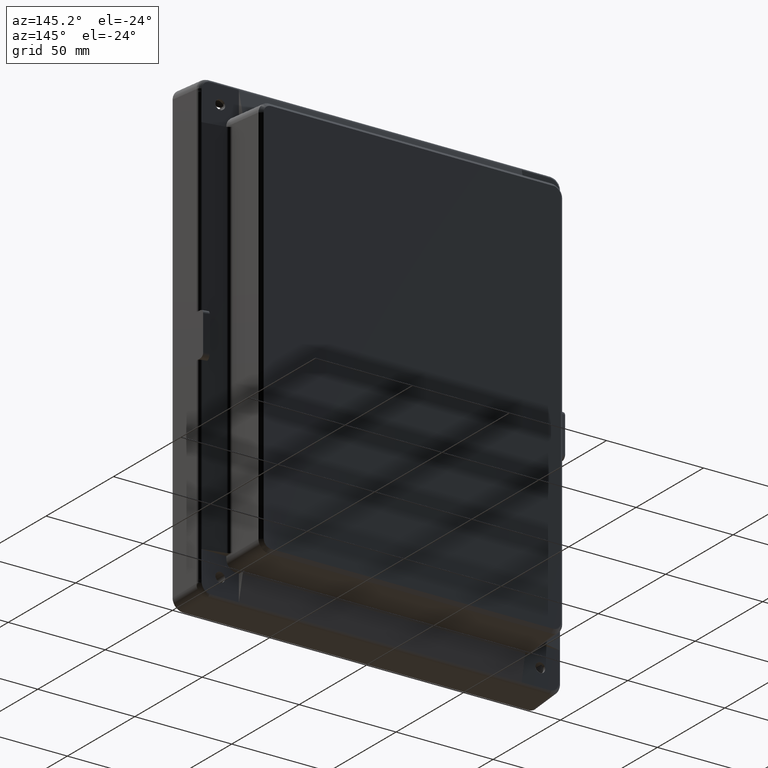
[diagram: clean part render]
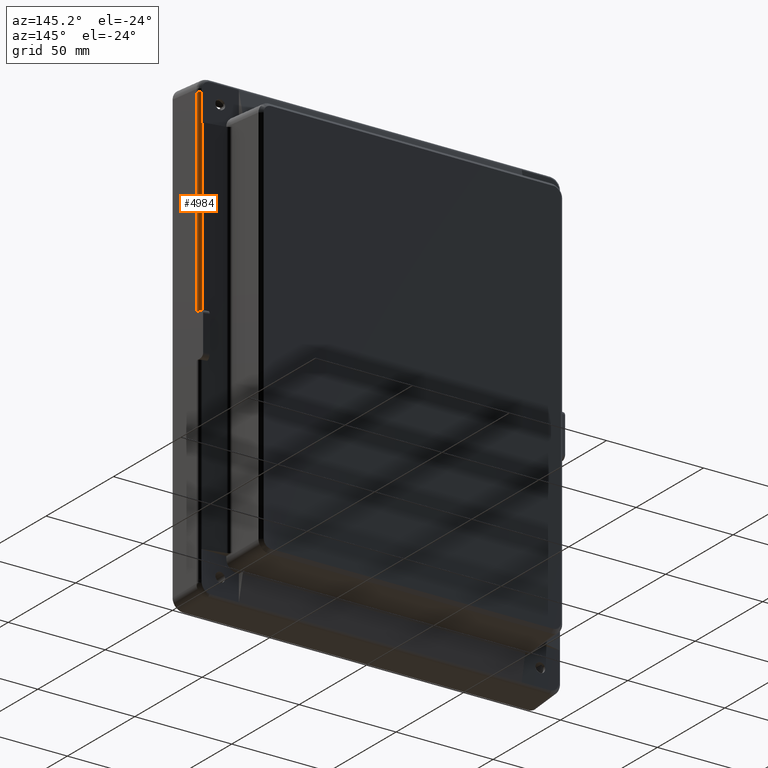
[diagram: same view with one face highlighted and labeled with its STEP entity id]
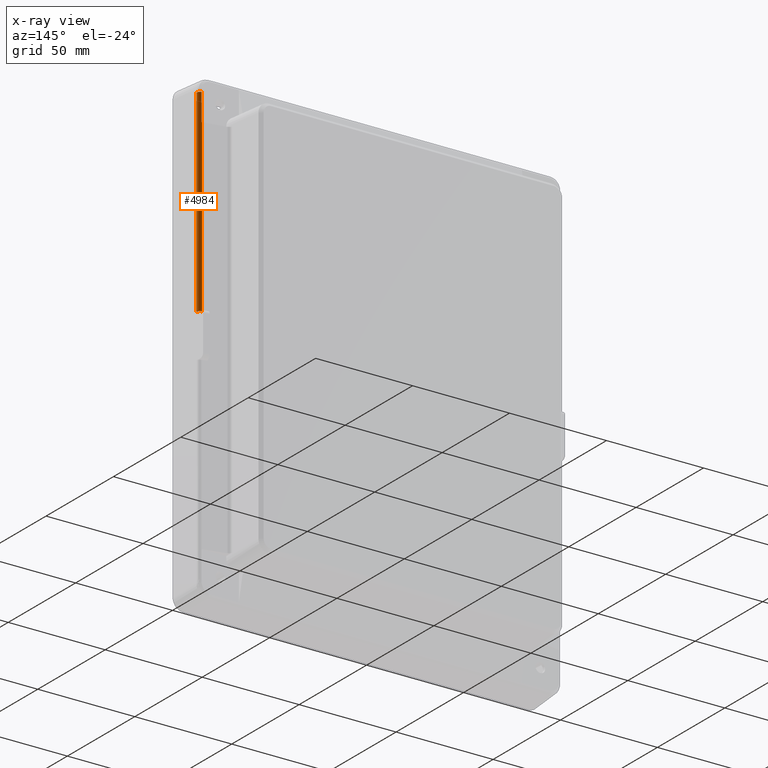
[diagram: x-ray of the same camera — body ghosted, the highlighted face saturated]
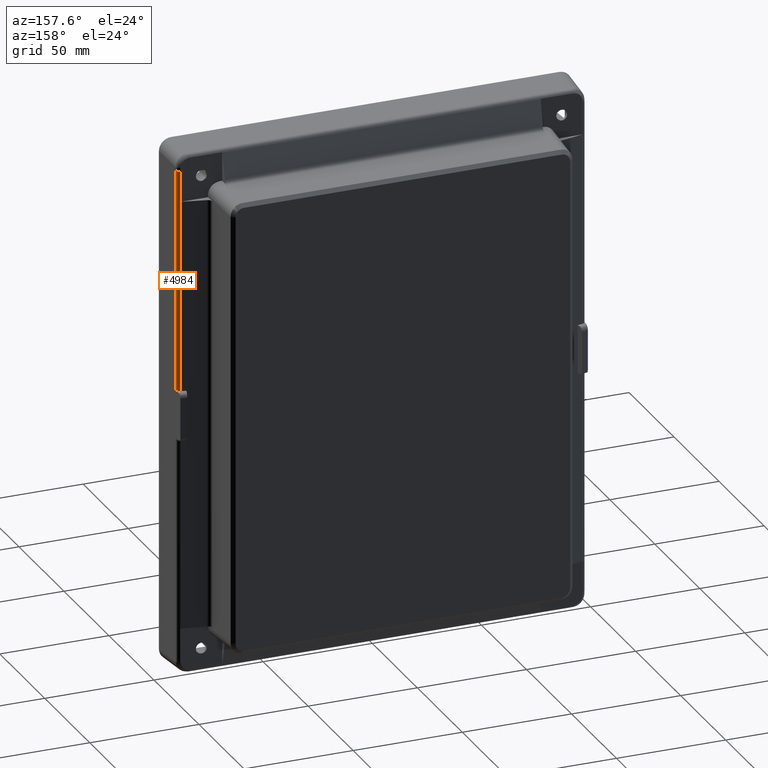
[diagram: same view with one face highlighted and labeled with its STEP entity id]
A machine part, auxiliary view. The second image highlights one B-rep face of the part: STEP entity #4984.
The next image is the same camera in x-ray: the body ghosted, the highlighted face saturated — about 0% of this face is hidden behind the body in this view.
A second angle (auxiliary view) of the same face is appended — the face is thin or edge-on in the first view.
In plain terms, the highlighted cylindrical surface (edge-blend (fillet) strip) has radius 2 mm, axis along (0, -0, 1).
Its self-contained STEP definition (entity closure, byte-faithful):
#30 = CARTESIAN_POINT ( 'NONE',  ( 93.55623979050348300, 8.467449213979881200, 112.9651442959591900 ) ) ;
#297 = ORIENTED_EDGE ( 'NONE', *, *, #1357, .F. ) ;
#504 = CARTESIAN_POINT ( 'NONE',  ( 91.97480410262984700, 10.31907250296160500, 98.93182312138239400 ) ) ;
#535 = CARTESIAN_POINT ( 'NONE',  ( 91.97480410262984700, 10.31907250296160500, 98.93182312138239400 ) ) ;
#572 = EDGE_CURVE ( 'NONE', #4976, #3321, #2073, .T. ) ;
#948 = AXIS2_PLACEMENT_3D ( 'NONE', #4103, #4120, #1677 ) ;
#1149 = EDGE_CURVE ( 'NONE', #2337, #2152, #4228, .T. ) ;
#1241 = CIRCLE ( 'NONE', #948, 2.000000000000001800 ) ;
#1357 = EDGE_CURVE ( 'NONE', #1945, #2152, #1241, .T. ) ;
#1445 = CARTESIAN_POINT ( 'NONE',  ( 91.55898072099432700, 8.362777301493993700, 120.5000000000000000 ) ) ;
#1501 = CYLINDRICAL_SURFACE ( 'NONE', #4035, 2.000000000000001800 ) ;
#1510 = CARTESIAN_POINT ( 'NONE',  ( 92.11440114518421800, 10.28544897354363000, 98.93358525589086100 ) ) ;
#1677 = DIRECTION ( 'NONE',  ( 1.000000000000000000, 0.0000000000000000000, 0.0000000000000000000 ) ) ;
#1945 = VERTEX_POINT ( 'NONE', #30 ) ;
#1974 = CARTESIAN_POINT ( 'NONE',  ( 92.18264067045092200, 10.26305314132456700, 98.93475897172263000 ) ) ;
#1979 = CARTESIAN_POINT ( 'NONE',  ( 91.97480410262984700, 10.31907250296160700, 11.20722333784912500 ) ) ;
#1990 = CARTESIAN_POINT ( 'NONE',  ( 93.55623979050348300, 8.467449213979881200, 11.28491063363524700 ) ) ;
#2001 = ORIENTED_EDGE ( 'NONE', *, *, #4760, .F. ) ;
#2013 = CARTESIAN_POINT ( 'NONE',  ( 92.04505530144611200, 10.30414014968802400, 98.93260569285692400 ) ) ;
#2045 = ORIENTED_EDGE ( 'NONE', *, *, #572, .F. ) ;
#2073 =( BOUNDED_CURVE ( )  B_SPLINE_CURVE ( 3, ( #1979, #2444, #2946, #5402 ),
 .UNSPECIFIED., .F., .T. ) 
 B_SPLINE_CURVE_WITH_KNOTS ( ( 4, 4 ),
 ( 3.141592653589790900, 4.450589592585542300 ),
 .UNSPECIFIED. ) 
 CURVE ( )  GEOMETRIC_REPRESENTATION_ITEM ( )  RATIONAL_B_SPLINE_CURVE ( ( 1.000000000000000000, 0.8622355601941558100, 0.8622355601941558100, 1.000000000000000000 ) ) 
 REPRESENTATION_ITEM ( '' )  );
#2152 = VERTEX_POINT ( 'NONE', #4150 ) ;
#2317 = VECTOR ( 'NONE', #5408, 1000.000000000000000 ) ;
#2337 = VERTEX_POINT ( 'NONE', #5441 ) ;
#2362 = CARTESIAN_POINT ( 'NONE',  ( 93.55623979050348300, 8.467449213979881200, 114.4662624004990200 ) ) ;
#2443 = DIRECTION ( 'NONE',  ( 0.0000000000000000000, -0.0000000000000000000, 1.000000000000000000 ) ) ;
#2444 = CARTESIAN_POINT ( 'NONE',  ( 92.89560202018898800, 10.12335086361232200, 11.20722333784913300 ) ) ;
#2460 =( BOUNDED_CURVE ( )  B_SPLINE_CURVE ( 3, ( #1974, #1510, #2013, #535 ),
 .UNSPECIFIED., .F., .T. ) 
 B_SPLINE_CURVE_WITH_KNOTS ( ( 4, 4 ),
 ( 2.824474218724513500, 2.932153143350541700 ),
 .UNSPECIFIED. ) 
 CURVE ( )  GEOMETRIC_REPRESENTATION_ITEM ( )  RATIONAL_B_SPLINE_CURVE ( ( 1.000000000000000000, 0.9990340041431311500, 0.9990340041431311500, 1.000000000000000000 ) ) 
 REPRESENTATION_ITEM ( '' )  );
#2617 = DIRECTION ( 'NONE',  ( -0.0000000000000000000, -0.0000000000000000000, -1.000000000000000000 ) ) ;
#2921 = DIRECTION ( 'NONE',  ( 1.000000000000000000, 0.0000000000000000000, 0.0000000000000000000 ) ) ;
#2946 = CARTESIAN_POINT ( 'NONE',  ( 93.50697233895954200, 9.407528191145733100, 11.23725662162626000 ) ) ;
#3321 = VERTEX_POINT ( 'NONE', #1990 ) ;
#3347 = VECTOR ( 'NONE', #3781, 1000.000000000000000 ) ;
#3614 = EDGE_CURVE ( 'NONE', #2337, #6121, #2460, .T. ) ;
#3781 = DIRECTION ( 'NONE',  ( -0.0000000000000000000, -0.0000000000000000000, 1.000000000000000000 ) ) ;
#3973 = CARTESIAN_POINT ( 'NONE',  ( 92.18264067045092200, 10.26305314132456700, 120.5000000000000000 ) ) ;
#4035 = AXIS2_PLACEMENT_3D ( 'NONE', #1445, #2443, #2921 ) ;
#4103 = CARTESIAN_POINT ( 'NONE',  ( 91.55898072099432700, 8.362777301493993700, 112.9651442959591900 ) ) ;
#4120 = DIRECTION ( 'NONE',  ( 0.0000000000000000000, 0.0000000000000000000, 1.000000000000000000 ) ) ;
#4150 = CARTESIAN_POINT ( 'NONE',  ( 92.18264067045093700, 10.26305314132456700, 112.9651442959591800 ) ) ;
#4228 = LINE ( 'NONE', #3973, #2317 ) ;
#4418 = LINE ( 'NONE', #4685, #6232 ) ;
#4635 = ORIENTED_EDGE ( 'NONE', *, *, #3614, .F. ) ;
#4652 = LINE ( 'NONE', #2362, #3347 ) ;
#4685 = CARTESIAN_POINT ( 'NONE',  ( 91.97480410262984700, 10.31907250296160500, 11.20722333784912500 ) ) ;
#4760 = EDGE_CURVE ( 'NONE', #6121, #4976, #4418, .T. ) ;
#4877 = FACE_OUTER_BOUND ( 'NONE', #6212, .T. ) ;
#4976 = VERTEX_POINT ( 'NONE', #5357 ) ;
#4984 = ADVANCED_FACE ( 'NONE', ( #4877 ), #1501, .T. ) ;
#5357 = CARTESIAN_POINT ( 'NONE',  ( 91.97480410262984700, 10.31907250296160700, 11.20722333784912500 ) ) ;
#5395 = ORIENTED_EDGE ( 'NONE', *, *, #5436, .F. ) ;
#5402 = CARTESIAN_POINT ( 'NONE',  ( 93.55623979050348300, 8.467449213979881200, 11.28491063363524700 ) ) ;
#5408 = DIRECTION ( 'NONE',  ( 0.0000000000000000000, -0.0000000000000000000, 1.000000000000000000 ) ) ;
#5436 = EDGE_CURVE ( 'NONE', #3321, #1945, #4652, .T. ) ;
#5441 = CARTESIAN_POINT ( 'NONE',  ( 92.18264067045092200, 10.26305314132456700, 98.93475897172263000 ) ) ;
#5499 = ORIENTED_EDGE ( 'NONE', *, *, #1149, .T. ) ;
#6121 = VERTEX_POINT ( 'NONE', #504 ) ;
#6212 = EDGE_LOOP ( 'NONE', ( #4635, #5499, #297, #5395, #2045, #2001 ) ) ;
#6232 = VECTOR ( 'NONE', #2617, 1000.000000000000000 ) ;